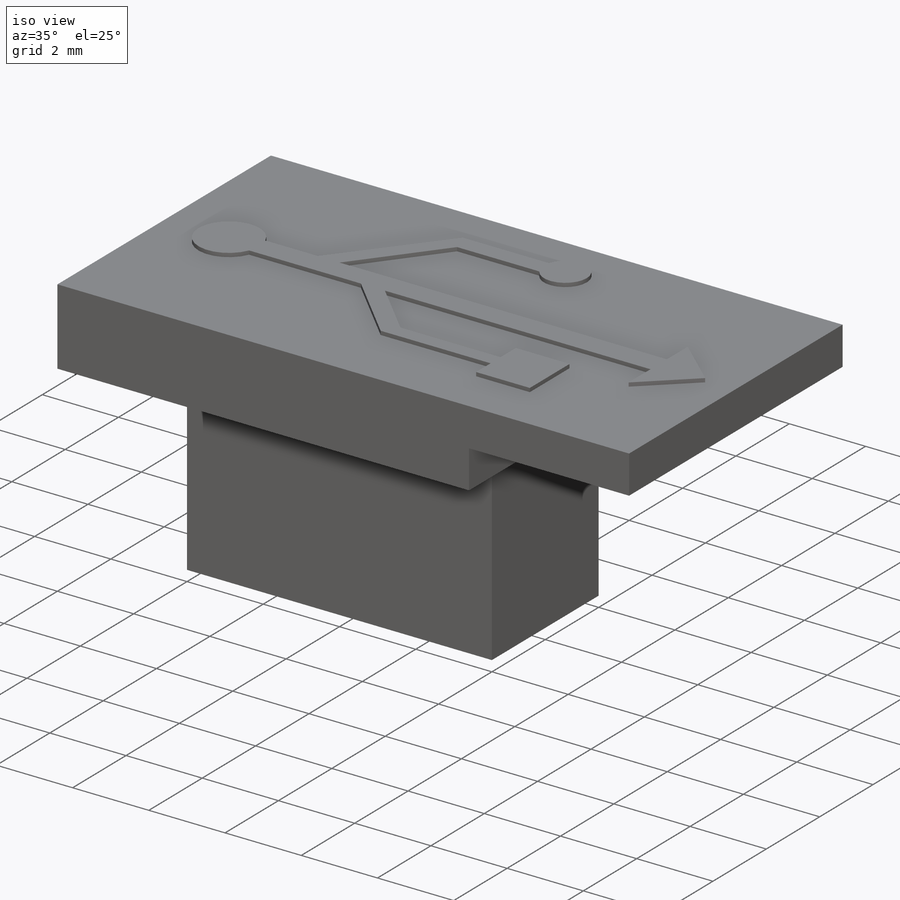
[diagram: iso view]
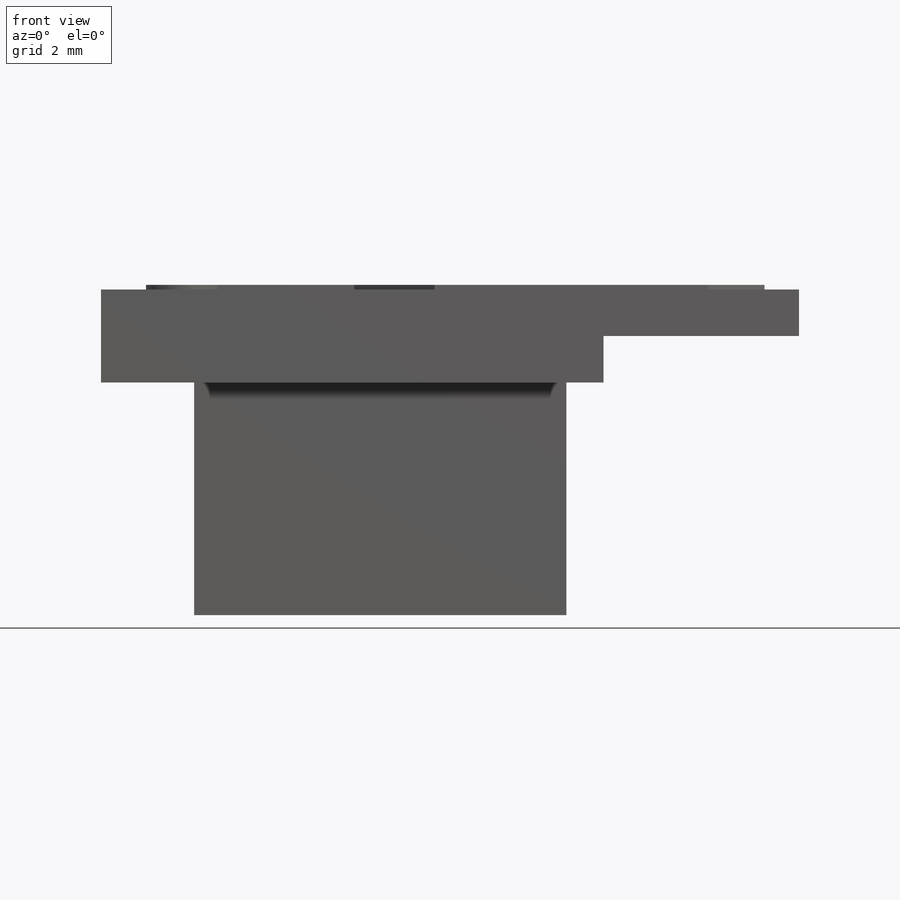
[diagram: front view]
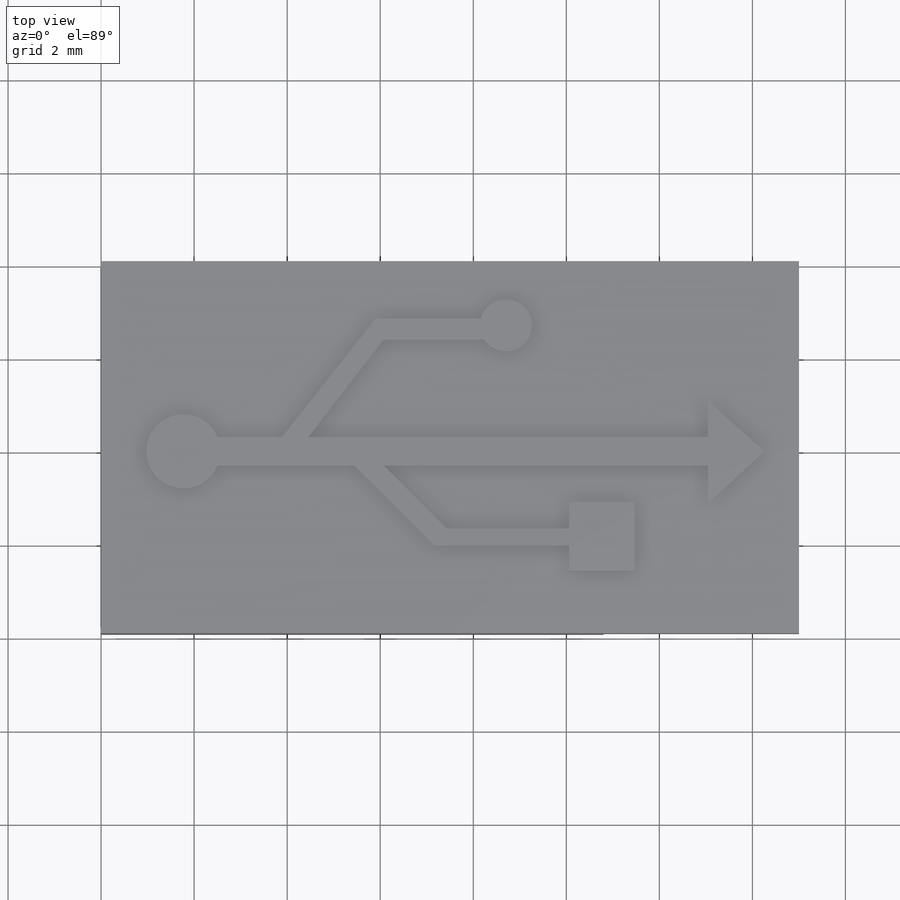
[diagram: top view]
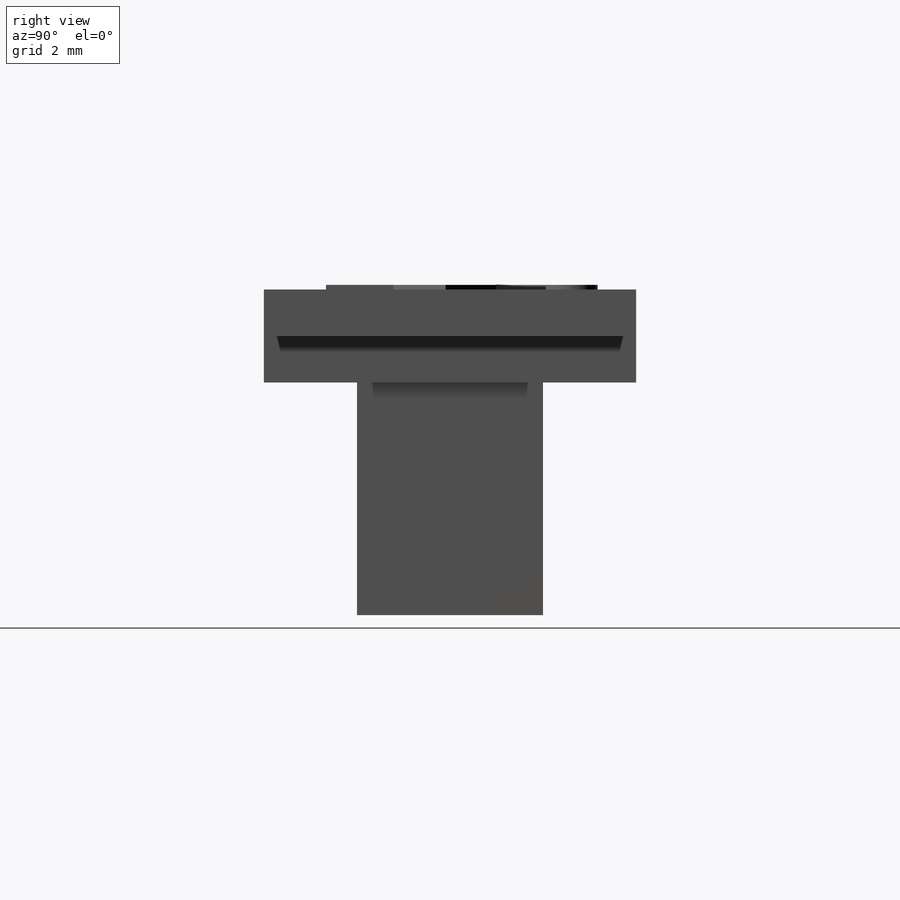
[diagram: right view]
SOLIDWORKS PART (.sldprt)
format: sldprt  version: not decoded by parser v0  size: 236,032 bytes
history: native  units: mm
features: sketch x5, extrude x4, plane x3, material x1, cut_extrude x1 (+8 scaffold rows collapsed)
feature tree (22):
  scaffold x8  (default folders/planes/origin — collapsed)
  material  "Matériau <non spécifié>"
  plane  "Plan de face"
  plane  "Plan de dessus"
  plane  "Plan de droite"
  sketch  "Esquisse2"  dims[D1=15.0mm D2=8.0mm]
  extrude  "Extrusion1"  Depth=1mm
  sketch  "Esquisse3"  dims[D1=10.8mm]
  extrude  "Extrusion2"  Depth=1mm
  sketch  "Esquisse4"  dims[D1=8.0mm D2=4.0mm D3=2.0mm D4=2.0mm]
  extrude  "Extrusion3"  Depth=5mm
  sketch  "Esquisse5"  dims[D1=0.3mm D2=0.8mm]
  cut_extrude  "Extrusion4"  Depth=3mm
  sketch  "Esquisse6"
  extrude  "Extrusion5"  Depth=0.1mm
decode coverage: 9 of 10 modeling features carry decoded parameters
note: suppression state not decoded; provenance and decode notes live in map.json
